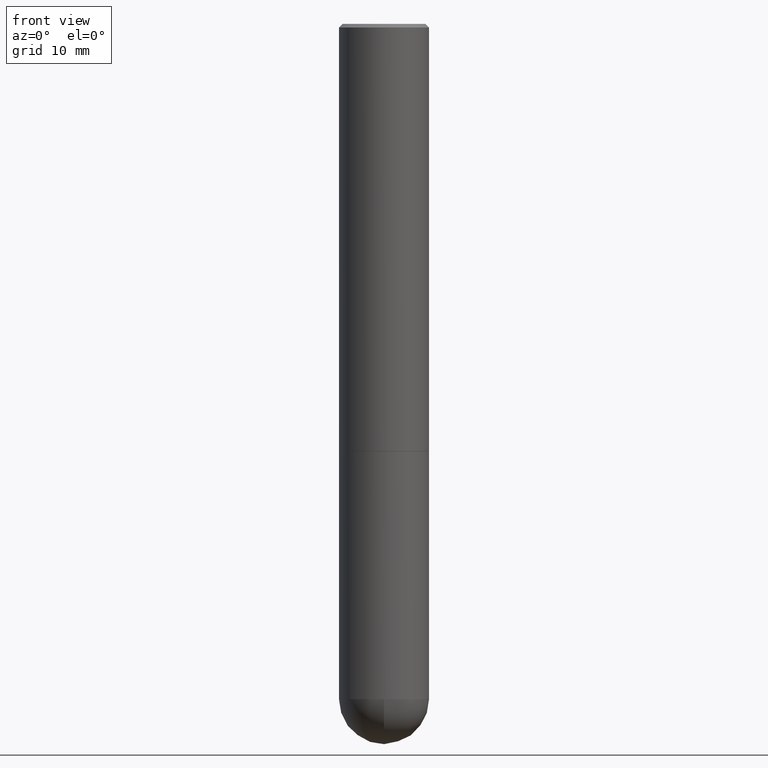
[diagram: clean part render]
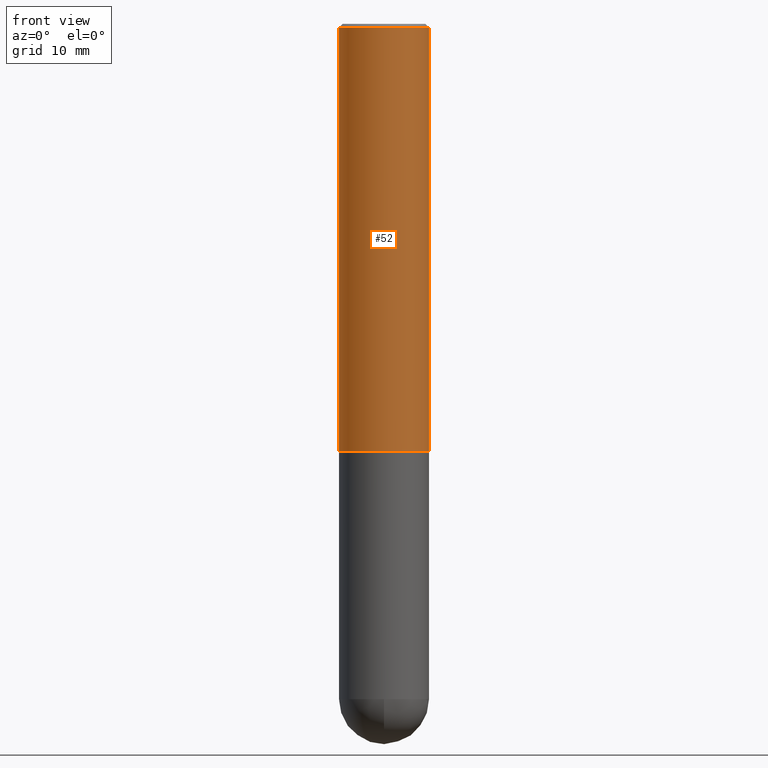
[diagram: same view with one face highlighted and labeled with its STEP entity id]
A machine part, front view. The second image highlights one B-rep face of the part: STEP entity #52.
In plain terms, the highlighted cylindrical surface (partial cylindrical patch) has radius 6.35 mm, axis along (-0, 0, 1).
Its self-contained STEP definition (entity closure, byte-faithful):
#2 = AXIS2_PLACEMENT_3D ( 'NONE', #28, #349, #103 ) ;
#4 = DIRECTION ( 'NONE',  ( -2.445468806185136877E-29, 3.491481338843145188E-15, 1.000000000000000000 ) ) ;
#22 = CARTESIAN_POINT ( 'NONE',  ( 0.2500000000000000000, -1.784954126219746189E-15, -0.02000000000000005593 ) ) ;
#28 = CARTESIAN_POINT ( 'NONE',  ( 5.805542945883513814E-29, -8.288776698413627111E-15, -2.373999999999999666 ) ) ;
#31 = CARTESIAN_POINT ( 'NONE',  ( 0.2500000000000001110, -1.745740669421567664E-15, 1.219044193948984649E-29 ) ) ;
#40 = AXIS2_PLACEMENT_3D ( 'NONE', #409, #318, #157 ) ;
#52 = ADVANCED_FACE ( 'NONE', ( #324 ), #412, .T. ) ;
#64 = EDGE_CURVE ( 'NONE', #243, #152, #106, .T. ) ;
#68 = DIRECTION ( 'NONE',  ( -2.445468806185136877E-29, 3.491481338843145188E-15, 1.000000000000000000 ) ) ;
#103 = DIRECTION ( 'NONE',  ( 1.000000000000000000, -6.982962677686264344E-15, 0.000000000000000000 ) ) ;
#106 = CIRCLE ( 'NONE', #2, 0.2500000000000002220 ) ;
#114 = EDGE_CURVE ( 'NONE', #243, #277, #162, .T. ) ;
#125 = LINE ( 'NONE', #31, #244 ) ;
#127 = CARTESIAN_POINT ( 'NONE',  ( 0.000000000000000000, 0.000000000000000000, 0.000000000000000000 ) ) ;
#129 = CARTESIAN_POINT ( 'NONE',  ( 0.2500000000000002220, -1.003451736783519537E-14, -2.373999999999999666 ) ) ;
#141 = EDGE_CURVE ( 'NONE', #277, #370, #251, .T. ) ;
#143 = EDGE_CURVE ( 'NONE', #152, #370, #125, .T. ) ;
#152 = VERTEX_POINT ( 'NONE', #129 ) ;
#157 = DIRECTION ( 'NONE',  ( 1.000000000000000000, -6.982962677686266711E-15, 0.000000000000000000 ) ) ;
#162 = LINE ( 'NONE', #286, #237 ) ;
#168 = AXIS2_PLACEMENT_3D ( 'NONE', #127, #258, #315 ) ;
#184 = EDGE_LOOP ( 'NONE', ( #209, #408, #310, #241 ) ) ;
#209 = ORIENTED_EDGE ( 'NONE', *, *, #114, .F. ) ;
#237 = VECTOR ( 'NONE', #68, 39.37007874015748143 ) ;
#241 = ORIENTED_EDGE ( 'NONE', *, *, #141, .F. ) ;
#243 = VERTEX_POINT ( 'NONE', #329 ) ;
#244 = VECTOR ( 'NONE', #4, 39.37007874015748143 ) ;
#251 = CIRCLE ( 'NONE', #40, 0.2500000000000000000 ) ;
#258 = DIRECTION ( 'NONE',  ( -2.445468806185136597E-29, 3.491481338843145583E-15, 1.000000000000000000 ) ) ;
#277 = VERTEX_POINT ( 'NONE', #363 ) ;
#286 = CARTESIAN_POINT ( 'NONE',  ( -0.2500000000000001110, 1.776356839400251254E-15, -1.229733772563727146E-29 ) ) ;
#310 = ORIENTED_EDGE ( 'NONE', *, *, #143, .T. ) ;
#315 = DIRECTION ( 'NONE',  ( 1.000000000000000000, -6.982962677686267499E-15, 4.876176775795936353E-29 ) ) ;
#318 = DIRECTION ( 'NONE',  ( -2.445468806185136597E-29, 3.491481338843145583E-15, 1.000000000000000000 ) ) ;
#324 = FACE_OUTER_BOUND ( 'NONE', #184, .T. ) ;
#329 = CARTESIAN_POINT ( 'NONE',  ( -0.2500000000000002220, -2.402946323194990795E-15, -2.373999999999999666 ) ) ;
#349 = DIRECTION ( 'NONE',  ( -2.445468806185136597E-29, 3.491481338843145583E-15, 1.000000000000000000 ) ) ;
#363 = CARTESIAN_POINT ( 'NONE',  ( -0.2500000000000000000, 1.675911042644703577E-15, -0.02000000000000005593 ) ) ;
#370 = VERTEX_POINT ( 'NONE', #22 ) ;
#408 = ORIENTED_EDGE ( 'NONE', *, *, #64, .T. ) ;
#409 = CARTESIAN_POINT ( 'NONE',  ( 4.890937612370287172E-31, -6.982962677686310098E-17, -0.02000000000000005593 ) ) ;
#412 = CYLINDRICAL_SURFACE ( 'NONE', #168, 0.2500000000000001110 ) ;